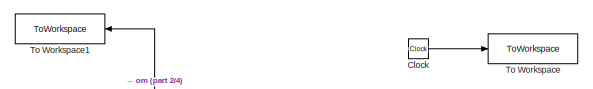
[diagram: root canvas - part 1/4, top left region]
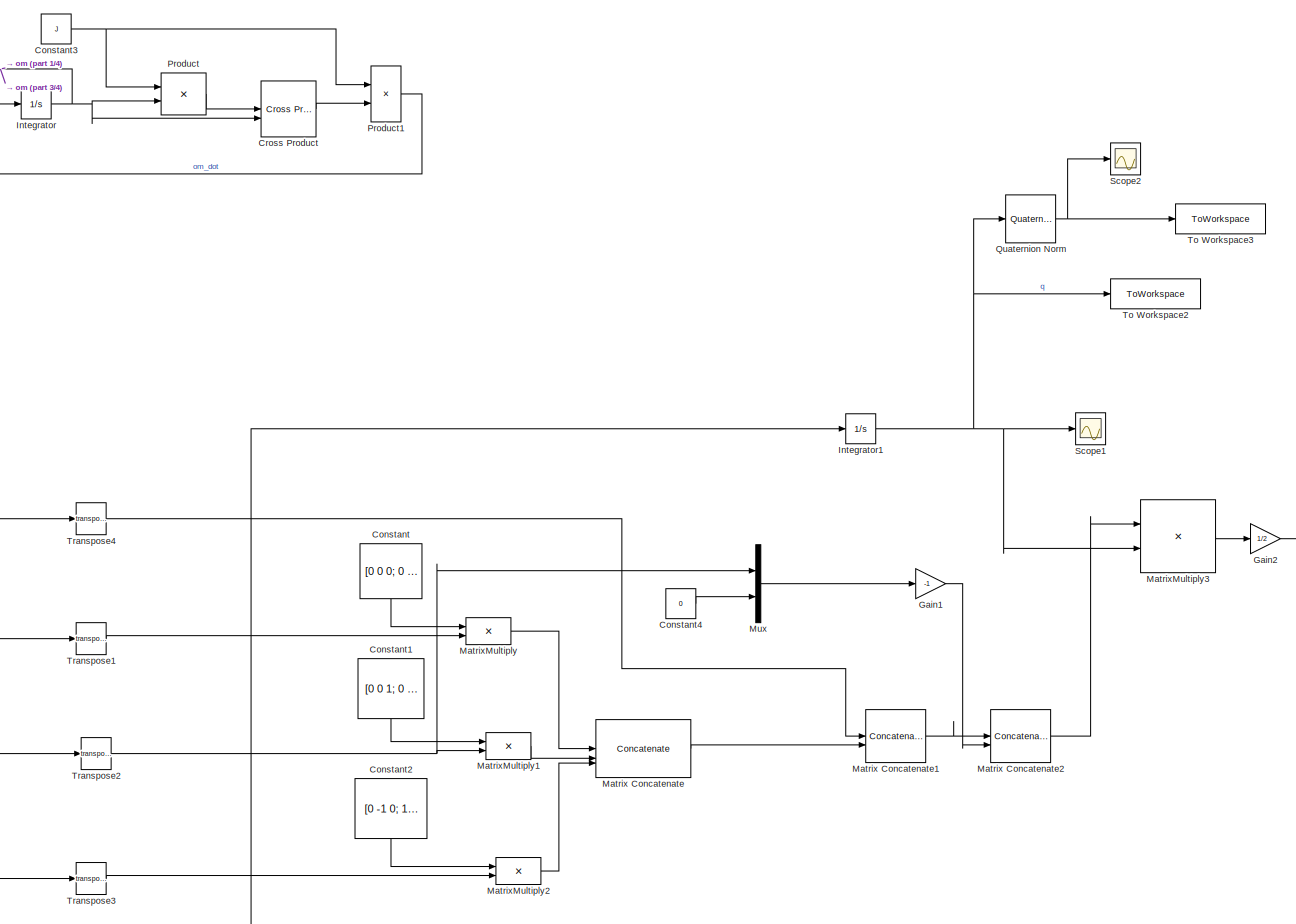
[diagram: root canvas - part 2/4, most of the canvas]
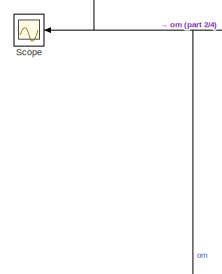
[diagram: root canvas - part 3/4, top left region]
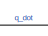
[diagram: root canvas - part 4/4, bottom right region]
MODEL slx_8c809481b314
KIND model
CONFIG AbsTol = auto
CONFIG EnableMultiTasking = off
CONFIG FixedStep = auto
CONFIG MaxStep = auto
CONFIG MinStep = auto
CONFIG RelTol = 1e-3
CONFIG SampleTimeConstraint = Unconstrained
CONFIG SolverName = ode4
CONFIG StartTime = 0.0
CONFIG StopTime = 100
BLOCK [Clock] Clock
BLOCK [Constant] Constant
  NameLocation = left
  Value = [0 0 0; 0 0 -1; 0 1 0]
  VectorParams1D = off
BLOCK [Constant] Constant1
  NameLocation = left
  Value = [0 0 1; 0 0 0; -1 0 0]
  VectorParams1D = off
BLOCK [Constant] Constant2
  NameLocation = left
  Value = [0 -1 0; 1 0 0; 0 0 0]
  VectorParams1D = off
BLOCK [Constant] Constant3
  Value = J
BLOCK [Constant] Constant4
  Value = 0
BLOCK [Reference] Cross Product  REF=matrix_library/Cross Product
  LibrarySourceBlock = simulink/Matrix\nOperations/Cross Product
  SourceBlock = matrix_library/Cross Product
  SourceType = CrossProduct
BLOCK [Gain] Gain1
  Gain = -1
BLOCK [Gain] Gain2
  Gain = 1/2
BLOCK [Integrator] Integrator
  InitialCondition = w0
BLOCK [Integrator] Integrator1
  InitialCondition = q_0
BLOCK [Concatenate] Matrix Concatenate
  ConcatenateDimension = 2
  Mode = Multidimensional array
  NumInputs = 3
BLOCK [Concatenate] Matrix Concatenate1
  ConcatenateDimension = 2
  Mode = Multidimensional array
BLOCK [Concatenate] Matrix Concatenate2
  Mode = Multidimensional array
BLOCK [Product] MatrixMultiply
  Multiplication = Matrix(*)
BLOCK [Product] MatrixMultiply1
  Multiplication = Matrix(*)
BLOCK [Product] MatrixMultiply2
  Multiplication = Matrix(*)
BLOCK [Product] MatrixMultiply3
  Multiplication = Matrix(*)
BLOCK [Mux] Mux
  DisplayOption = bar
  Inputs = 2
BLOCK [Product] Product
  Multiplication = Matrix(*)
BLOCK [Product] Product1
  Inputs = /*
  Multiplication = Matrix(*)
BLOCK [Reference] Quaternion Norm  REF=sharedutil/Quaternion
Norm
  LibrarySourceBlock = aerolibutil/Quaternion\nNorm
  SourceBlock = sharedutil/Quaternion\nNorm
  SourceType = Quaternion Norm
BLOCK [Scope] Scope
  Floating = off
  NameLocation = top
  NumInputPorts = 1
  ScopeSpecificationString = Simulink.scopes.TimeScopeBlockCfg('CurrentConfiguration', extmgr.ConfigurationSet(extmgr.Configuration('Core','General UI',true),extmgr.Configuration('Core','Source UI',true),extmgr.Configuration('Sources','WiredSimulink',true,'DataLoggingVariableName','ScopeData1'),extmgr.Configuration('Visuals','Time Domain',true,'SerializedDisplays',{struct('MinYLimReal','-1.01308','MaxYLimReal','1.01317','YLab...<+1508ch>
BLOCK [Scope] Scope1
  Floating = off
  NumInputPorts = 1
  ScopeSpecificationString = Simulink.scopes.TimeScopeBlockCfg('CurrentConfiguration', extmgr.ConfigurationSet(extmgr.Configuration('Core','General UI',true),extmgr.Configuration('Core','Source UI',true),extmgr.Configuration('Sources','WiredSimulink',true),extmgr.Configuration('Visuals','Time Domain',true,'SerializedDisplays',{struct('MinYLimReal','-360632520141162.5625','MaxYLimReal','370394003948135.00000','YLabelReal','','...<+1606ch>
BLOCK [Scope] Scope2
  Floating = off
  NumInputPorts = 1
  ScopeSpecificationString = Simulink.scopes.TimeScopeBlockCfg('CurrentConfiguration', extmgr.ConfigurationSet(extmgr.Configuration('Core','General UI',true),extmgr.Configuration('Core','Source UI',true),extmgr.Configuration('Sources','WiredSimulink',true,'DataLoggingVariableName','ScopeData2'),extmgr.Configuration('Visuals','Time Domain',true,'SerializedDisplays',{struct('MinYLimReal','-2.10754','MaxYLimReal','11.26854','YLa...<+1557ch>
BLOCK [ToWorkspace] To Workspace
  FixptAsFi = on
  MaxDataPoints = inf
  SampleTime = -1
  SaveFormat = Timeseries
  VariableName = time
BLOCK [ToWorkspace] To Workspace1
  FixptAsFi = on
  MaxDataPoints = inf
  NameLocation = top
  SampleTime = -1
  SaveFormat = Timeseries
  VariableName = omega
BLOCK [ToWorkspace] To Workspace2
  FixptAsFi = on
  MaxDataPoints = inf
  SampleTime = -1
  SaveFormat = Timeseries
  VariableName = q
BLOCK [ToWorkspace] To Workspace3
  FixptAsFi = on
  MaxDataPoints = inf
  SampleTime = -1
  SaveFormat = Timeseries
  VariableName = norm_q
BLOCK [Math] Transpose1
  Operator = transpose
BLOCK [Math] Transpose2
  Operator = transpose
BLOCK [Math] Transpose3
  Operator = transpose
BLOCK [Math] Transpose4
  Operator = transpose
LINE Clock:1 -> To Workspace:1
LINE Constant1:1 -> MatrixMultiply1:1
LINE Constant2:1 -> MatrixMultiply2:1
NET Constant3:1 -> Product1:1, Product:1
LINE Constant4:1 -> Mux:2
LINE Constant:1 -> MatrixMultiply:1
LINE Cross Product:1 -> Product1:2
LINE Gain1:1 -> Matrix Concatenate2:2
LINE Gain2:1 -> Integrator1:1
NET Integrator1:1 -> MatrixMultiply3:2, Quaternion Norm:1, Scope1:1, To Workspace2:1
NET Integrator:1 -> Cross Product:2, Product:2, Scope:1, To Workspace1:1, Transpose1:1, Transpose2:1, Transpose3:1, Transpose4:1
LINE Matrix Concatenate1:1 -> Matrix Concatenate2:1
LINE Matrix Concatenate2:1 -> MatrixMultiply3:1
LINE Matrix Concatenate:1 -> Matrix Concatenate1:2
LINE MatrixMultiply1:1 -> Matrix Concatenate:2
LINE MatrixMultiply2:1 -> Matrix Concatenate:3
LINE MatrixMultiply3:1 -> Gain2:1
LINE MatrixMultiply:1 -> Matrix Concatenate:1
LINE Mux:1 -> Gain1:1
LINE Product1:1 -> Integrator:1
LINE Product:1 -> Cross Product:1
NET Quaternion Norm:1 -> Scope2:1, To Workspace3:1
LINE Transpose1:1 -> MatrixMultiply:2
NET Transpose2:1 -> MatrixMultiply1:2, Mux:1
LINE Transpose3:1 -> MatrixMultiply2:2
LINE Transpose4:1 -> Matrix Concatenate1:1
note: NET lines group one-source signal fan-out (src -> all destinations, sorted); 1:1 wires keep LINE
